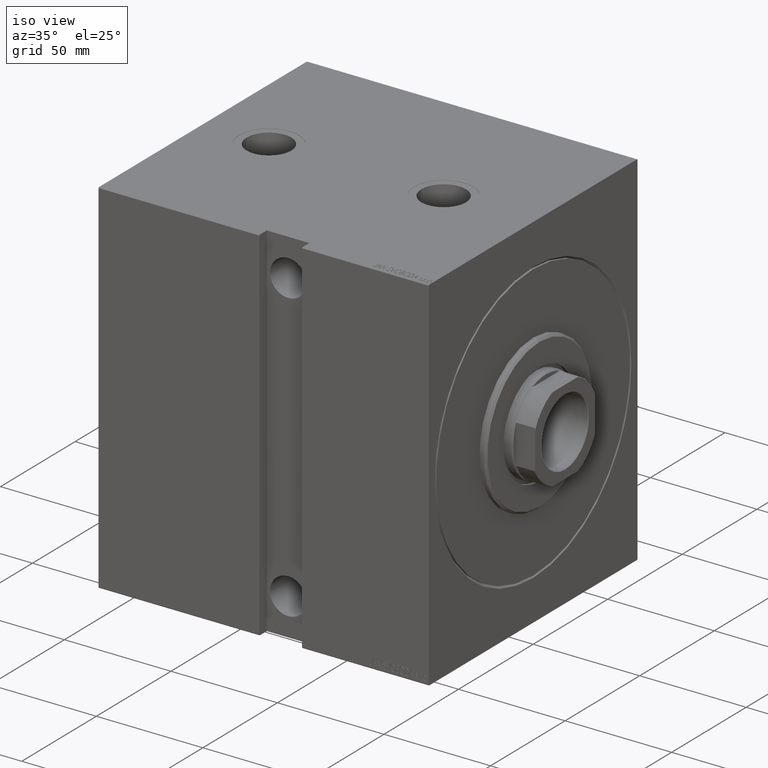
[diagram: clean part render]
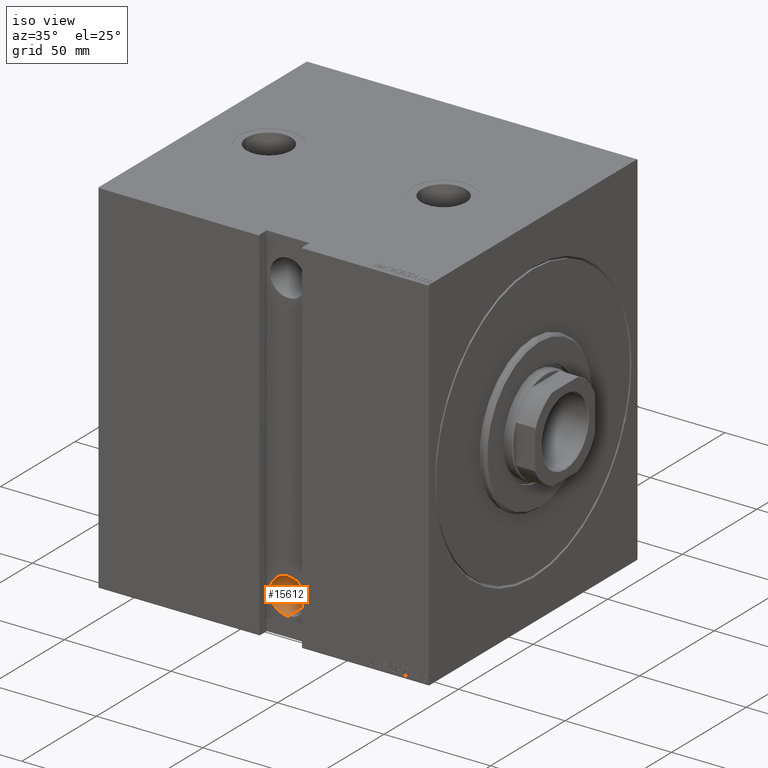
[diagram: same view with one face highlighted and labeled with its STEP entity id]
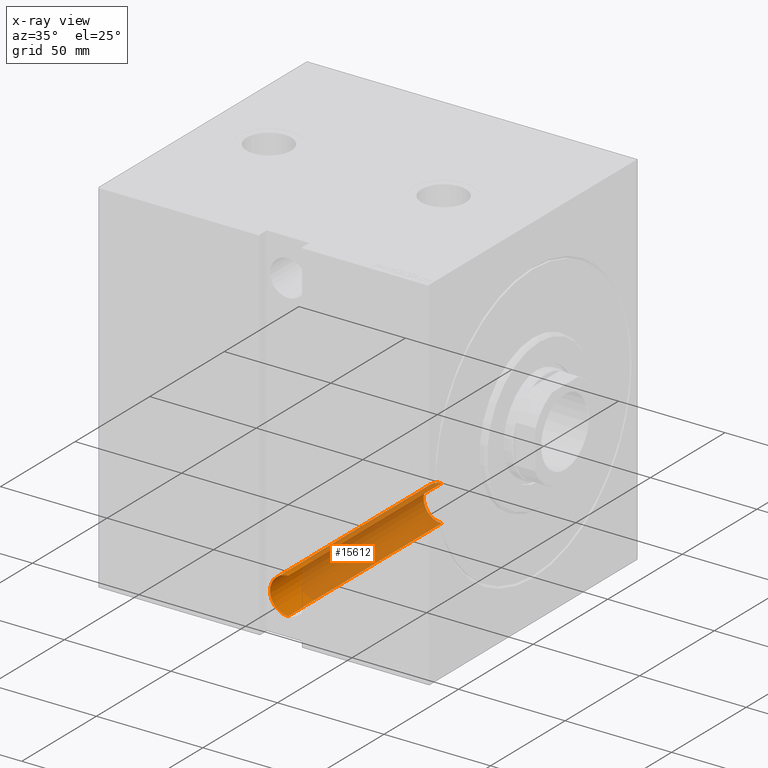
[diagram: x-ray of the same camera — body ghosted, the highlighted face saturated]
A machine part, iso view. The second image highlights one B-rep face of the part: STEP entity #15612.
The next image is the same camera in x-ray: the body ghosted, the highlighted face saturated — about 81% of this face is hidden behind the body in this view.
In plain terms, the highlighted cylindrical surface (edge-blend (fillet) strip) has radius 8.5 mm, axis along (0, -1, 0).
Its self-contained STEP definition (entity closure, byte-faithful):
#2020 = EDGE_CURVE ( 'NONE', #27657, #39374, #43364, .T. ) ;
#3307 = DIRECTION ( 'NONE',  ( 0.000000000000000000, 0.000000000000000000, -1.000000000000000000 ) ) ;
#3753 = CARTESIAN_POINT ( 'NONE',  ( 69.50000000000002842, 65.00000000000002842, -67.50000000000000000 ) ) ;
#4325 = DIRECTION ( 'NONE',  ( -0.000000000000000000, 1.000000000000000000, -0.000000000000000000 ) ) ;
#5263 = VERTEX_POINT ( 'NONE', #14983 ) ;
#6130 = CARTESIAN_POINT ( 'NONE',  ( 69.50000000000002842, -38.00000000000000711, -67.50000000000000000 ) ) ;
#8811 = CARTESIAN_POINT ( 'NONE',  ( 69.50000000000002842, -70.00000000000008527, -76.00000000000001421 ) ) ;
#10487 = AXIS2_PLACEMENT_3D ( 'NONE', #3753, #17565, #3307 ) ;
#11733 = CARTESIAN_POINT ( 'NONE',  ( 69.50000000000002842, 65.00000000000002842, -76.00000000000001421 ) ) ;
#12450 = DIRECTION ( 'NONE',  ( -0.000000000000000000, 1.000000000000000000, -0.000000000000000000 ) ) ;
#13260 = VECTOR ( 'NONE', #12450, 1000.000000000000000 ) ;
#13657 = CYLINDRICAL_SURFACE ( 'NONE', #19494, 8.500000000000014211 ) ;
#14863 = DIRECTION ( 'NONE',  ( -0.000000000000000000, 1.000000000000000000, -0.000000000000000000 ) ) ;
#14983 = CARTESIAN_POINT ( 'NONE',  ( 69.50000000000002842, 65.00000000000002842, -58.99999999999999289 ) ) ;
#15612 = ADVANCED_FACE ( 'NONE', ( #39012 ), #13657, .F. ) ;
#17565 = DIRECTION ( 'NONE',  ( 0.000000000000000000, -1.000000000000000000, 0.000000000000000000 ) ) ;
#19494 = AXIS2_PLACEMENT_3D ( 'NONE', #34410, #4325, #27494 ) ;
#19867 = VECTOR ( 'NONE', #14863, 1000.000000000000000 ) ;
#22193 = ORIENTED_EDGE ( 'NONE', *, *, #2020, .F. ) ;
#23861 = EDGE_CURVE ( 'NONE', #27657, #5263, #33231, .T. ) ;
#25873 = CARTESIAN_POINT ( 'NONE',  ( 69.50000000000002842, -70.00000000000008527, -58.99999999999999289 ) ) ;
#26423 = DIRECTION ( 'NONE',  ( 0.000000000000000000, 0.000000000000000000, -1.000000000000000000 ) ) ;
#27494 = DIRECTION ( 'NONE',  ( 0.000000000000000000, 0.000000000000000000, 1.000000000000000000 ) ) ;
#27657 = VERTEX_POINT ( 'NONE', #41904 ) ;
#28254 = LINE ( 'NONE', #8811, #19867 ) ;
#28307 = ORIENTED_EDGE ( 'NONE', *, *, #42935, .F. ) ;
#33231 = LINE ( 'NONE', #25873, #13260 ) ;
#34410 = CARTESIAN_POINT ( 'NONE',  ( 69.50000000000002842, -70.00000000000008527, -67.50000000000000000 ) ) ;
#34462 = ORIENTED_EDGE ( 'NONE', *, *, #23861, .T. ) ;
#35330 = CARTESIAN_POINT ( 'NONE',  ( 69.50000000000002842, -38.00000000000000711, -76.00000000000001421 ) ) ;
#35574 = EDGE_CURVE ( 'NONE', #39049, #5263, #38984, .T. ) ;
#36898 = DIRECTION ( 'NONE',  ( -0.000000000000000000, 1.000000000000000000, -1.963837897332234442E-16 ) ) ;
#38984 = CIRCLE ( 'NONE', #10487, 8.500000000000007105 ) ;
#39012 = FACE_OUTER_BOUND ( 'NONE', #40703, .T. ) ;
#39049 = VERTEX_POINT ( 'NONE', #11733 ) ;
#39112 = AXIS2_PLACEMENT_3D ( 'NONE', #6130, #36898, #26423 ) ;
#39179 = ORIENTED_EDGE ( 'NONE', *, *, #35574, .F. ) ;
#39374 = VERTEX_POINT ( 'NONE', #35330 ) ;
#40703 = EDGE_LOOP ( 'NONE', ( #28307, #22193, #34462, #39179 ) ) ;
#41904 = CARTESIAN_POINT ( 'NONE',  ( 69.50000000000002842, -38.00000000000000711, -58.99999999999999289 ) ) ;
#42935 = EDGE_CURVE ( 'NONE', #39374, #39049, #28254, .T. ) ;
#43364 = CIRCLE ( 'NONE', #39112, 8.500000000000007105 ) ;